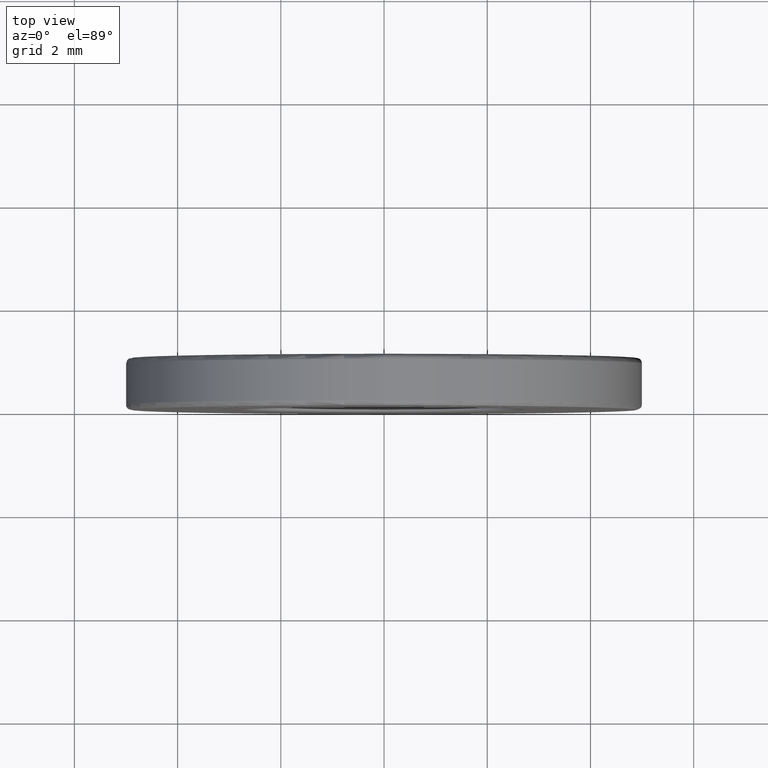
[diagram: clean part render]
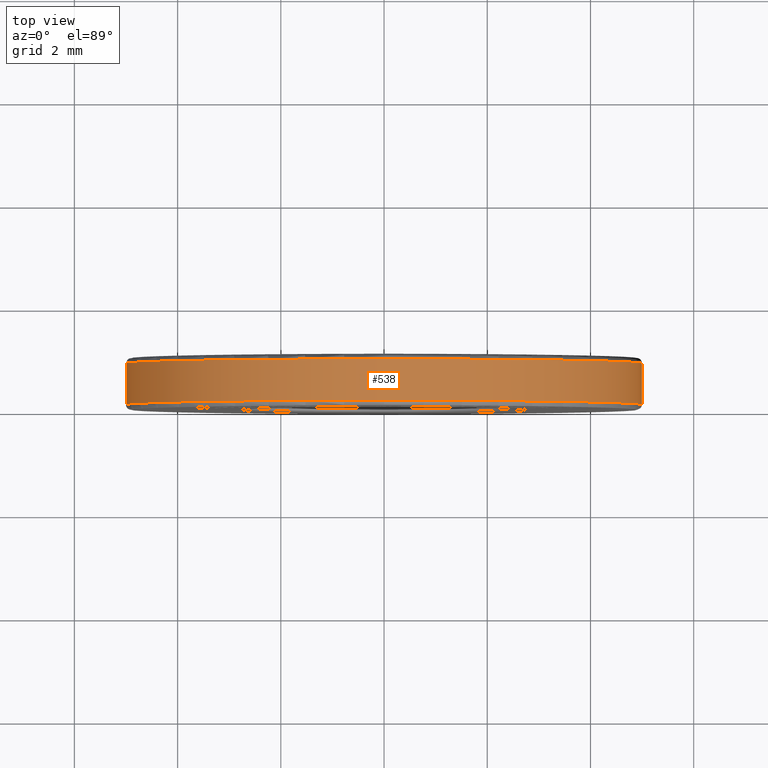
[diagram: same view with one face highlighted and labeled with its STEP entity id]
A machine part, top view. The second image highlights one B-rep face of the part: STEP entity #538.
In plain terms, the highlighted cylindrical surface (bore or boss wall) has radius 5 mm, axis along (-0, -1, -0).
Its self-contained STEP definition (entity closure, byte-faithful):
#399 = VERTEX_POINT ( 'NONE', #12206 ) ;
#538 = ADVANCED_FACE ( 'NONE', ( #13468, #12700 ), #9264, .T. ) ;
#3370 = DIRECTION ( 'NONE',  ( -0.0000000000000000000, -1.000000000000000000, -0.0000000000000000000 ) ) ;
#3930 = ORIENTED_EDGE ( 'NONE', *, *, #9296, .T. ) ;
#4557 = EDGE_LOOP ( 'NONE', ( #3930 ) ) ;
#5126 = EDGE_CURVE ( 'NONE', #399, #399, #6233, .T. ) ;
#6233 = CIRCLE ( 'NONE', #10645, 5.000000000000000000 ) ;
#6356 = CIRCLE ( 'NONE', #14082, 5.000000000000000000 ) ;
#7466 = CARTESIAN_POINT ( 'NONE',  ( 0.0000000000000000000, 0.9000000000000000200, 0.0000000000000000000 ) ) ;
#8285 = DIRECTION ( 'NONE',  ( 0.0000000000000000000, 0.0000000000000000000, 1.000000000000000000 ) ) ;
#8696 = EDGE_LOOP ( 'NONE', ( #10306 ) ) ;
#9264 = CYLINDRICAL_SURFACE ( 'NONE', #14244, 5.000000000000000000 ) ;
#9296 = EDGE_CURVE ( 'NONE', #11871, #11871, #6356, .T. ) ;
#9639 = DIRECTION ( 'NONE',  ( 0.0000000000000000000, 0.0000000000000000000, 1.000000000000000000 ) ) ;
#10306 = ORIENTED_EDGE ( 'NONE', *, *, #5126, .T. ) ;
#10557 = DIRECTION ( 'NONE',  ( 0.0000000000000000000, 1.000000000000000000, 0.0000000000000000000 ) ) ;
#10645 = AXIS2_PLACEMENT_3D ( 'NONE', #12887, #10557, #8285 ) ;
#10813 = DIRECTION ( 'NONE',  ( -0.0000000000000000000, -1.000000000000000000, -0.0000000000000000000 ) ) ;
#11871 = VERTEX_POINT ( 'NONE', #13384 ) ;
#12206 = CARTESIAN_POINT ( 'NONE',  ( 0.0000000000000000000, 0.1000000000000000500, 5.000000000000000000 ) ) ;
#12253 = CARTESIAN_POINT ( 'NONE',  ( 0.0000000000000000000, 1.000000000000000000, 0.0000000000000000000 ) ) ;
#12700 = FACE_OUTER_BOUND ( 'NONE', #4557, .T. ) ;
#12887 = CARTESIAN_POINT ( 'NONE',  ( 0.0000000000000000000, 0.1000000000000000500, 0.0000000000000000000 ) ) ;
#13384 = CARTESIAN_POINT ( 'NONE',  ( 0.0000000000000000000, 0.9000000000000000200, 5.000000000000000000 ) ) ;
#13468 = FACE_OUTER_BOUND ( 'NONE', #8696, .T. ) ;
#14082 = AXIS2_PLACEMENT_3D ( 'NONE', #7466, #10813, #9639 ) ;
#14244 = AXIS2_PLACEMENT_3D ( 'NONE', #12253, #3370, #14937 ) ;
#14937 = DIRECTION ( 'NONE',  ( 0.0000000000000000000, 0.0000000000000000000, -1.000000000000000000 ) ) ;